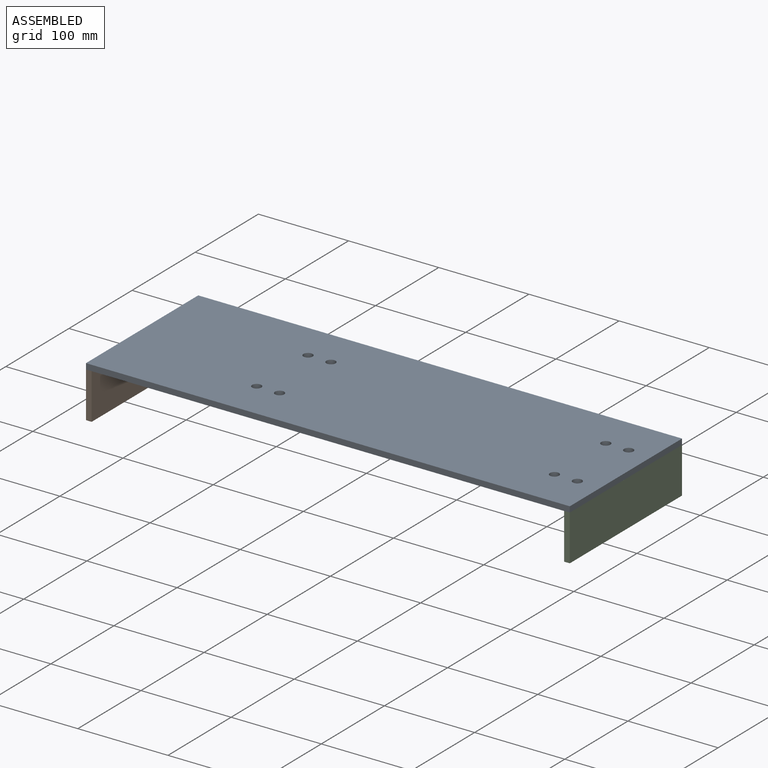
[diagram: assembled view]
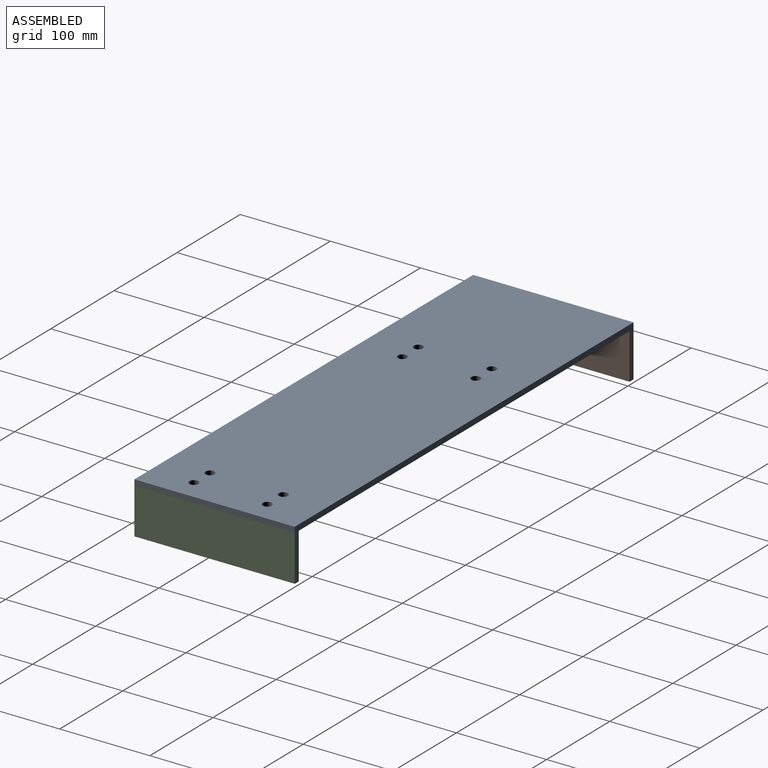
[diagram: assembled view, second angle]
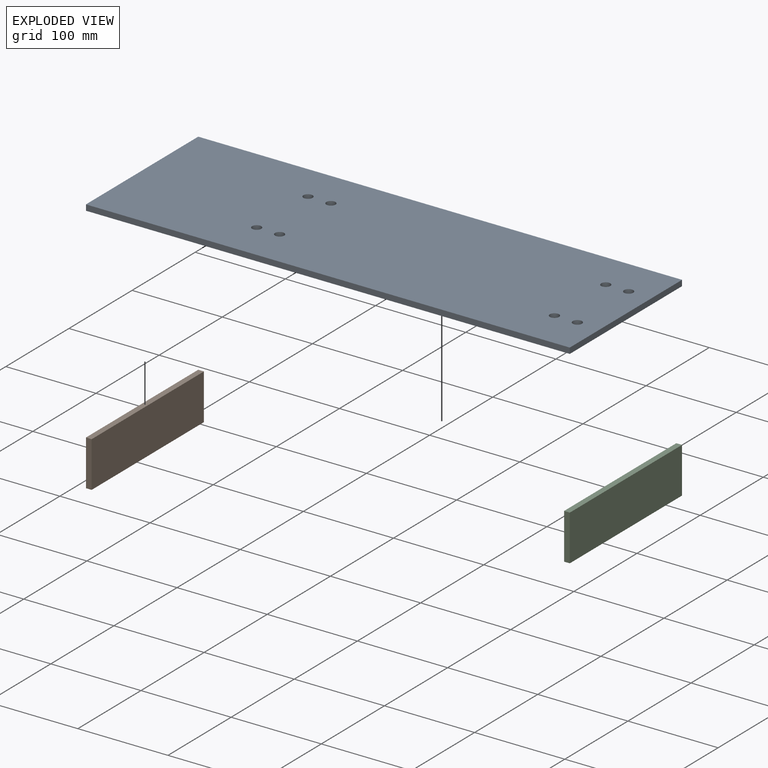
[diagram: exploded view]
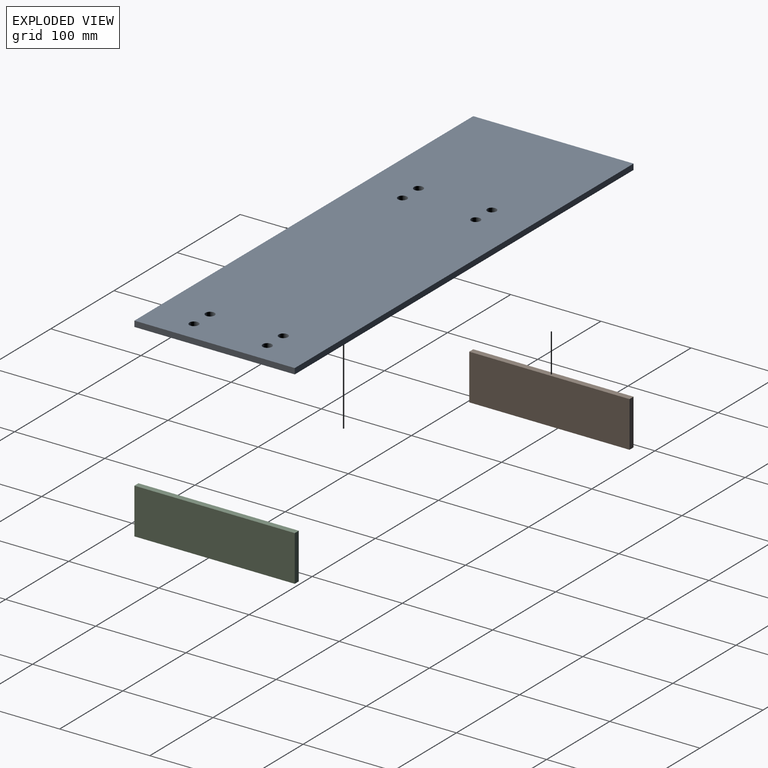
[diagram: exploded view, second angle]
ASSEMBLY  parts=3 mates=2
PART A: 14 faces, bbox 536.6x177.8x6.4 mm
  f0: plane 536.58x177.8mm, normal (0,0,1), area 94754.4mm2, adj f2,f3,f4,f5,f6,f7,f8,f9
  f1: plane 536.58x177.8mm, normal (0,0,-1), area 94754.4mm2, adj f2,f3,f4,f5,f6,f7,f8,f9
  f2: plane 536.58x6.35mm, normal (0,1,0), area 3407.3mm2, adj f0,f1,f3,f5
  f3: plane 177.8x6.35mm, normal (-1,0,0), area 1129mm2, adj f0,f1,f2,f4
  f4: plane 536.58x6.35mm, normal (0,-1,0), area 3407.3mm2, adj f0,f1,f3,f5
  f5: plane 177.8x6.35mm, normal (1,0,0), area 1129mm2, adj f0,f1,f2,f4
  f6: cylinder r=5.08mm len=10.16mm, axis (0,0,1), area 202.7mm2, adj f0,f1
  f7: cylinder r=5.08mm len=10.16mm, axis (0,0,1), area 202.7mm2, adj f0,f1
  f8: cylinder r=5.08mm len=10.16mm, axis (0,0,1), area 202.7mm2, adj f0,f1
  f9: cylinder r=5.08mm len=10.16mm, axis (0,0,1), area 202.7mm2, adj f0,f1
  f10: cylinder r=5.08mm len=10.16mm, axis (0,0,1), area 202.7mm2, adj f0,f1
  f11: cylinder r=5.08mm len=10.16mm, axis (0,0,1), area 202.7mm2, adj f0,f1
  f12: cylinder r=5.08mm len=10.16mm, axis (0,0,1), area 202.7mm2, adj f0,f1
  f13: cylinder r=5.08mm len=10.16mm, axis (0,0,1), area 202.7mm2, adj f0,f1
PART B: 6 faces, bbox 177.8x50.8x6.4 mm
  f0: plane 177.8x6.35mm, normal (0,1,0), area 1129mm2, adj f1,f3,f4,f5
  f1: plane 50.8x6.35mm, normal (-1,0,0), area 322.6mm2, adj f0,f2,f4,f5
  f2: plane 177.8x6.35mm, normal (0,-1,0), area 1129mm2, adj f1,f3,f4,f5
  f3: plane 50.8x6.35mm, normal (1,0,0), area 322.6mm2, adj f0,f2,f4,f5
  f4: plane 177.8x50.8mm, normal (0,0,1), area 9032.2mm2, adj f0,f1,f2,f3
  f5: plane 177.8x50.8mm, normal (0,0,-1), area 9032.2mm2, adj f0,f1,f2,f3
PART C: same geometry as B
PLACE A at identity
PLACE B rot(axis=(0.58,-0.58,-0.58),120deg) t=(-473.54,68.03,-77.99)mm
PLACE C rot(axis=(0.58,-0.58,-0.58),120deg) t=(56.69,68.03,-77.99)mm
MATE fastened C.f0 <-> A.f1  axis (0,0,1) through (56.69,101.53,0)mm
MATE fastened B.f0 <-> A.f1  axis (0,0,1) through (-479.89,101.53,0)mm
